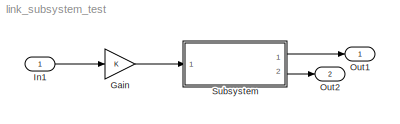
MODEL link_subsystem_test
KIND model
BLOCK [Gain] Gain
  OutDataTypeStr = Inherit: Inherit via internal rule
  ParamDataTypeStr = Inherit: Inherit via internal rule
  SID = 6
  SaturateOnIntegerOverflow = off
BLOCK [Inport] In1
  IconDisplay = Port number
  OutDataTypeStr = double
  PortDimensions = 1
  SID = 1
  SampleTime = 0
  SamplingMode = Sample based
  SignalType = real
BLOCK [Outport] Out1
  IconDisplay = Port number
  OutDataTypeStr = double
  PortDimensions = 1
  SID = 2
  SampleTime = 0
  SamplingMode = Sample based
  SignalType = real
BLOCK [Outport] Out2
  IconDisplay = Port number
  OutDataTypeStr = double
  Port = 2
  PortDimensions = 1
  SID = 14
  SampleTime = 0
  SamplingMode = Sample based
  SignalType = real
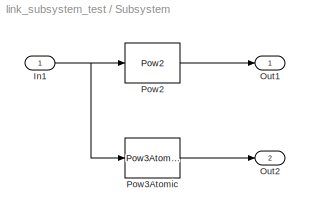
BLOCK [SubSystem] Subsystem
  Ports = [1, 2]
  RequestExecContextInheritance = off
  SID = 3
  TreatAsAtomicUnit = on
  Variant = off
BLOCK [Inport] Subsystem/In1
  IconDisplay = Port number
  SID = 4
BLOCK [Outport] Subsystem/Out1
  IconDisplay = Port number
  SID = 5
BLOCK [Outport] Subsystem/Out2
  IconDisplay = Port number
  Port = 2
  SID = 13
BLOCK [Reference] Subsystem/Pow2  REF=link_subsystem_lib_test/Pow2  (lib defined in mdl_76c7df4669b1)
  Ports = [1, 1]
  SID = 11
  SourceBlock = link_subsystem_lib_test/Pow2
  SourceType = SubSystem
BLOCK [Reference] Subsystem/Pow3Atomic  REF=link_subsystem_lib_test/Pow3Atomic  (lib defined in mdl_76c7df4669b1)
  Ports = [1, 1]
  SID = 12
  SourceBlock = link_subsystem_lib_test/Pow3Atomic
  SourceType = SubSystem
LINE Gain:1 -> Subsystem:1
LINE In1:1 -> Gain:1
NET Subsystem/In1:1 -> Subsystem/Pow2:1, Subsystem/Pow3Atomic:1
LINE Subsystem/Pow2:1 -> Subsystem/Out1:1
LINE Subsystem/Pow3Atomic:1 -> Subsystem/Out2:1
LINE Subsystem:1 -> Out1:1
LINE Subsystem:2 -> Out2:1
note: NET lines group one-source signal fan-out (src -> all destinations, sorted); 1:1 wires keep LINE
